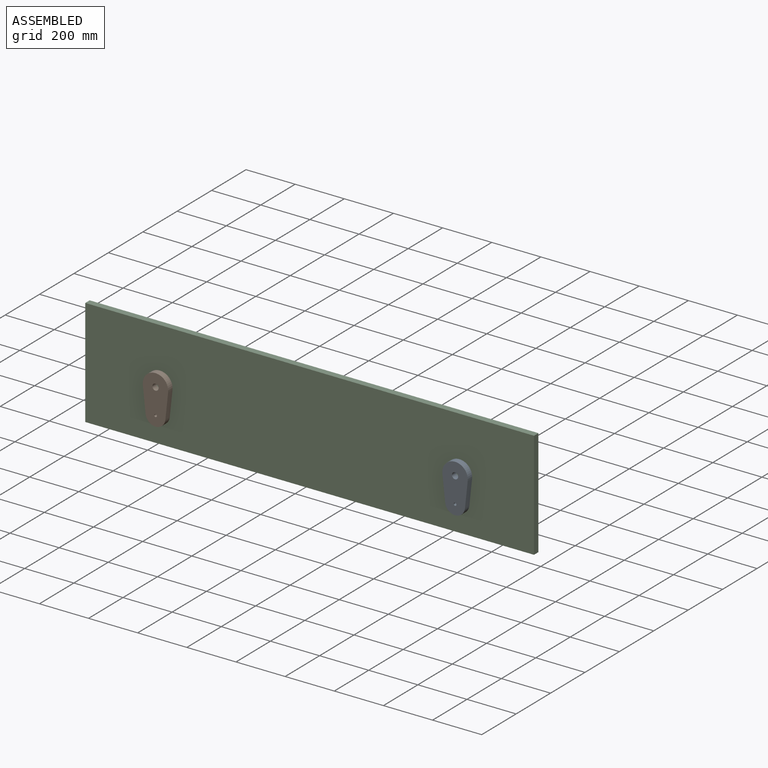
[diagram: assembled view]
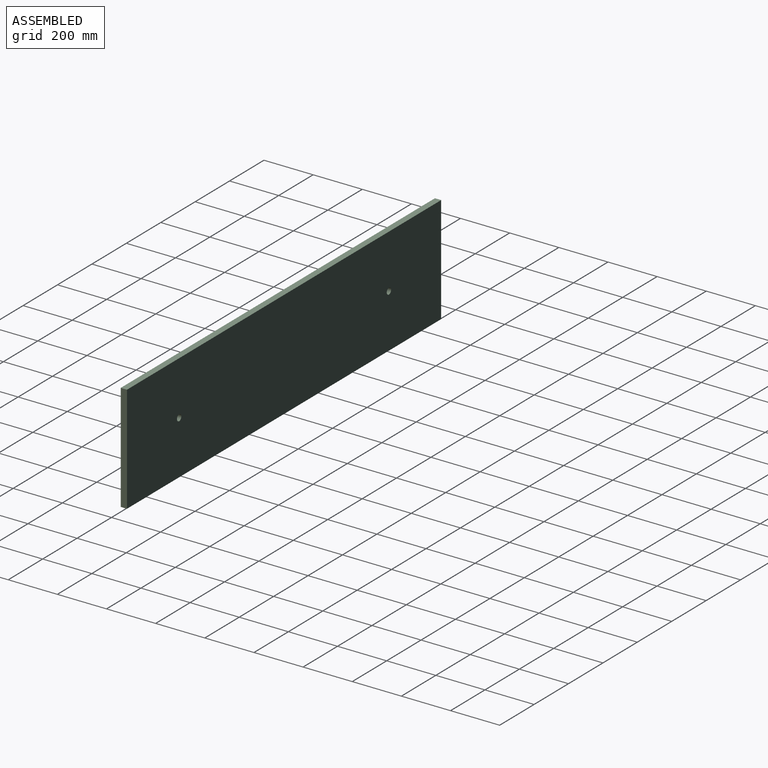
[diagram: assembled view, second angle]
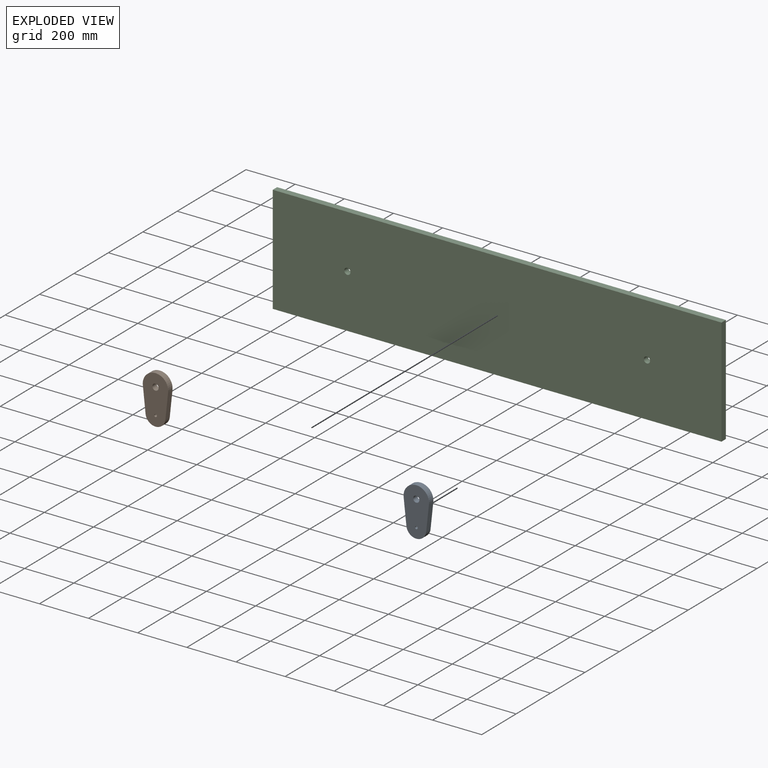
[diagram: exploded view]
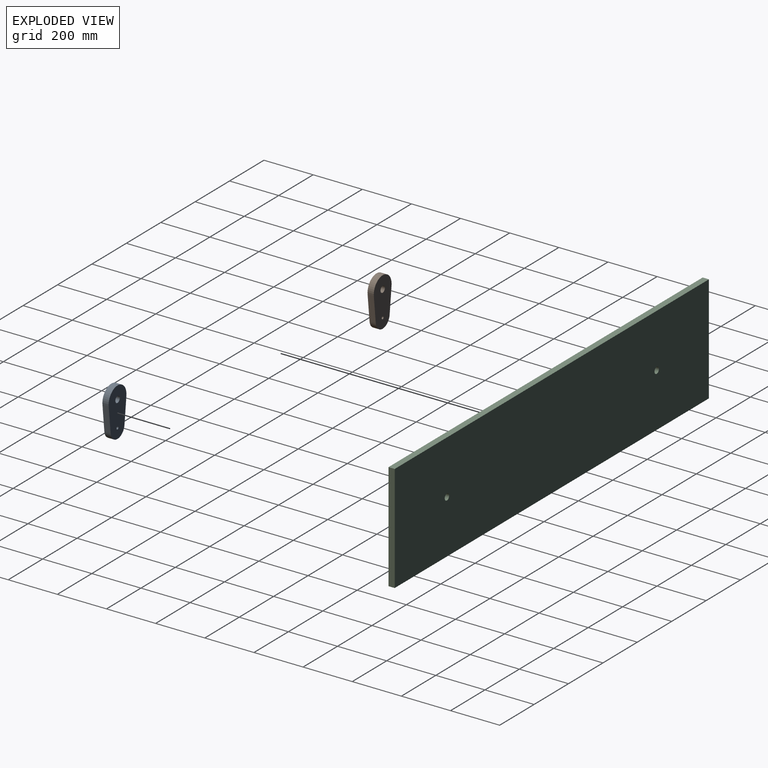
[diagram: exploded view, second angle]
ASSEMBLY  parts=3 mates=2
PART A: 8 faces, bbox 103.6x25.4x196.9 mm
  f0: cylinder r=40.55mm len=80.63mm, axis (0,1,0), area 3014.1mm2, adj f1,f5,f6,f7
  f1: plane 103.36x25.4mm, normal (0.99,0,-0.11), area 2640.7mm2, adj f0,f2,f6,f7
  f2: cylinder r=51.78mm len=103.55mm, axis (0,1,0), area 4414.6mm2, adj f1,f5,f6,f7
  f3: cylinder r=12.7mm len=25.4mm, axis (0,1,0), area 2026.8mm2, adj f6,f7
  f4: cylinder r=5.43mm len=25.4mm, axis (0,1,0), area 865.8mm2, adj f6,f7
  f5: plane 103.36x25.4mm, normal (-0.99,0,-0.11), area 2640.7mm2, adj f0,f2,f6,f7
  f6: plane 196.9x103.55mm, normal (0,-1,0), area 15904.8mm2, adj f0,f1,f2,f3,f4,f5
  f7: plane 196.9x103.55mm, normal (0,1,0), area 15904.8mm2, adj f0,f1,f2,f3,f4,f5
PART B: same geometry as A
PART C: 8 faces, bbox 1826.3x25.4x437.9 mm
  f0: plane 437.92x25.4mm, normal (1,0,0), area 11123.2mm2, adj f1,f4,f6,f7
  f1: plane 1826.28x25.4mm, normal (0,0,1), area 46387.6mm2, adj f0,f2,f6,f7
  f2: plane 437.92x25.4mm, normal (-1,0,0), area 11123.2mm2, adj f1,f4,f6,f7
  f3: cylinder r=12.7mm len=25.4mm, axis (0,1,0), area 2026.8mm2, adj f6,f7
  f4: plane 1826.28x25.4mm, normal (0,0,-1), area 46387.6mm2, adj f0,f2,f6,f7
  f5: cylinder r=12.7mm len=25.4mm, axis (0,1,0), area 2026.8mm2, adj f6,f7
  f6: plane 1826.28x437.92mm, normal (0,-1,0), area 798750.8mm2, adj f0,f1,f2,f3,f4,f5
  f7: plane 1826.28x437.92mm, normal (0,1,0), area 798750.8mm2, adj f0,f1,f2,f3,f4,f5
PLACE A t=(1270,12.48,-6.23)mm
PLACE B t=(50.8,12.48,-6.23)mm
PLACE C t=(50.8,37.88,-6.23)mm fixed
MATE revolute A.f2 <-> C.f5  axis (0,1,0) through (660.4,12.48,-6.23)mm
MATE revolute C.f3 <-> B.f2  axis (0,-1,0) through (-558.8,12.48,-6.23)mm
